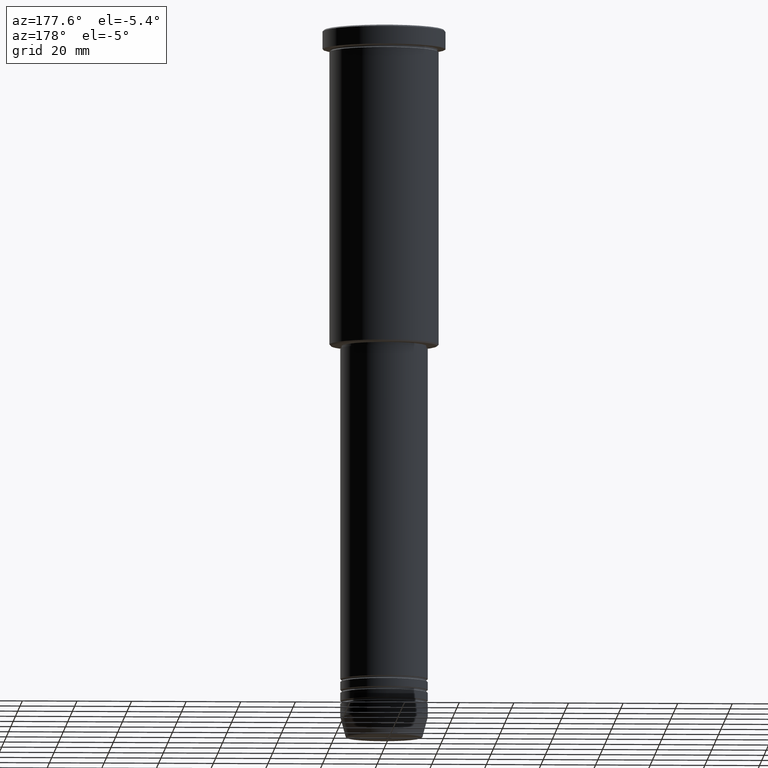
[diagram: clean part render]
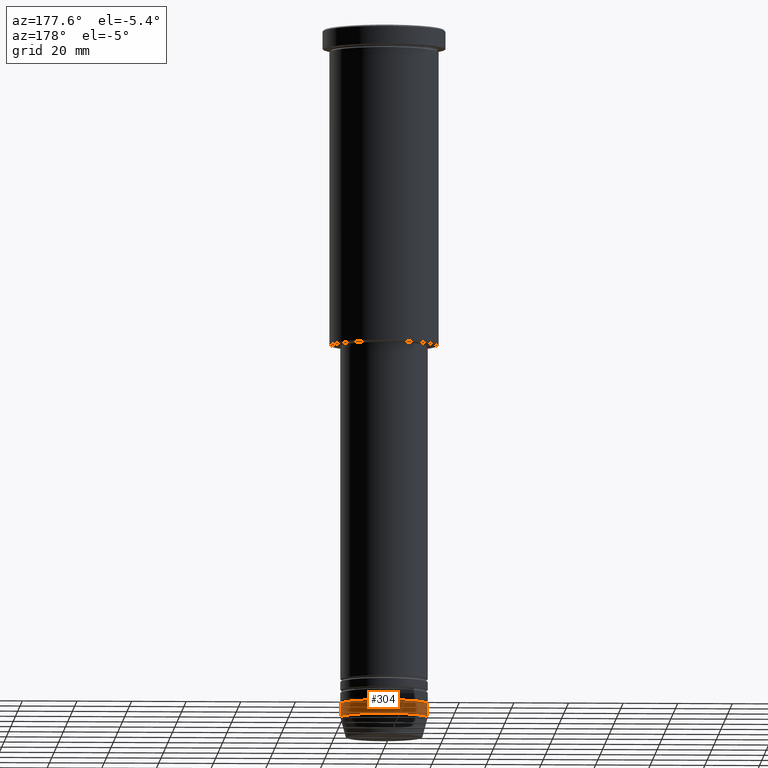
[diagram: same view with one face highlighted and labeled with its STEP entity id]
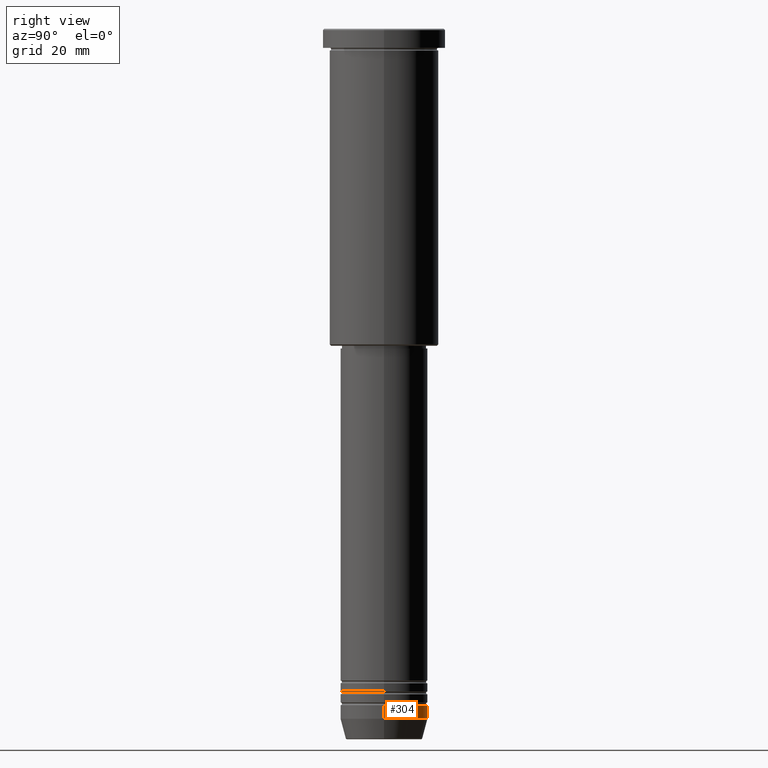
[diagram: same view with one face highlighted and labeled with its STEP entity id]
A machine part, auxiliary view. The second image highlights one B-rep face of the part: STEP entity #304.
A second angle (right view) of the same face is appended — the face is thin or edge-on in the first view.
In plain terms, the highlighted cylindrical surface (partial cylindrical patch) has radius 16 mm, axis along (-0, -0, 1).
Its self-contained STEP definition (entity closure, byte-faithful):
#75 = EDGE_CURVE ( 'NONE', #915, #317, #624, .T. ) ;
#153 = CARTESIAN_POINT ( 'NONE',  ( 16.00000000000000000, 0.000000000000000000, 0.000000000000000000 ) ) ;
#161 = EDGE_CURVE ( 'NONE', #1127, #915, #499, .T. ) ;
#233 = DIRECTION ( 'NONE',  ( -0.000000000000000000, -0.000000000000000000, 1.000000000000000000 ) ) ;
#237 = DIRECTION ( 'NONE',  ( -0.000000000000000000, -0.000000000000000000, 1.000000000000000000 ) ) ;
#238 = VERTEX_POINT ( 'NONE', #448 ) ;
#242 = LINE ( 'NONE', #689, #909 ) ;
#304 = ADVANCED_FACE ( 'NONE', ( #1130 ), #417, .T. ) ;
#317 = VERTEX_POINT ( 'NONE', #936 ) ;
#337 = CARTESIAN_POINT ( 'NONE',  ( 0.000000000000000000, 0.000000000000000000, -252.5000000000000000 ) ) ;
#359 = EDGE_LOOP ( 'NONE', ( #517, #989, #555, #437 ) ) ;
#360 = AXIS2_PLACEMENT_3D ( 'NONE', #1141, #237, #863 ) ;
#417 = CYLINDRICAL_SURFACE ( 'NONE', #862, 16.00000000000000000 ) ;
#436 = DIRECTION ( 'NONE',  ( 1.000000000000000000, 0.000000000000000000, 0.000000000000000000 ) ) ;
#437 = ORIENTED_EDGE ( 'NONE', *, *, #161, .F. ) ;
#448 = CARTESIAN_POINT ( 'NONE',  ( -16.00000000000000000, 1.959434878635765131E-15, -252.5000000000000000 ) ) ;
#454 = EDGE_CURVE ( 'NONE', #1127, #238, #511, .T. ) ;
#495 = CARTESIAN_POINT ( 'NONE',  ( 0.000000000000000000, 0.000000000000000000, 0.000000000000000000 ) ) ;
#499 = LINE ( 'NONE', #153, #826 ) ;
#511 = CIRCLE ( 'NONE', #926, 16.00000000000000000 ) ;
#516 = DIRECTION ( 'NONE',  ( -0.000000000000000000, -0.000000000000000000, 1.000000000000000000 ) ) ;
#517 = ORIENTED_EDGE ( 'NONE', *, *, #454, .T. ) ;
#555 = ORIENTED_EDGE ( 'NONE', *, *, #75, .F. ) ;
#566 = DIRECTION ( 'NONE',  ( -0.000000000000000000, -0.000000000000000000, 1.000000000000000000 ) ) ;
#616 = CARTESIAN_POINT ( 'NONE',  ( 16.00000000000000000, 0.000000000000000000, -252.5000000000000000 ) ) ;
#624 = CIRCLE ( 'NONE', #360, 16.00000000000000000 ) ;
#689 = CARTESIAN_POINT ( 'NONE',  ( -16.00000000000000000, 1.959434878635765131E-15, 0.000000000000000000 ) ) ;
#800 = EDGE_CURVE ( 'NONE', #238, #317, #242, .T. ) ;
#826 = VECTOR ( 'NONE', #959, 1000.000000000000000 ) ;
#833 = DIRECTION ( 'NONE',  ( 1.000000000000000000, 0.000000000000000000, 0.000000000000000000 ) ) ;
#847 = CARTESIAN_POINT ( 'NONE',  ( 16.00000000000000000, 0.000000000000000000, -247.5000000000000000 ) ) ;
#862 = AXIS2_PLACEMENT_3D ( 'NONE', #495, #566, #833 ) ;
#863 = DIRECTION ( 'NONE',  ( 1.000000000000000000, 0.000000000000000000, 0.000000000000000000 ) ) ;
#909 = VECTOR ( 'NONE', #233, 1000.000000000000000 ) ;
#915 = VERTEX_POINT ( 'NONE', #847 ) ;
#926 = AXIS2_PLACEMENT_3D ( 'NONE', #337, #516, #436 ) ;
#936 = CARTESIAN_POINT ( 'NONE',  ( -16.00000000000000000, 1.959434878635765131E-15, -247.5000000000000000 ) ) ;
#959 = DIRECTION ( 'NONE',  ( -0.000000000000000000, -0.000000000000000000, 1.000000000000000000 ) ) ;
#989 = ORIENTED_EDGE ( 'NONE', *, *, #800, .T. ) ;
#1127 = VERTEX_POINT ( 'NONE', #616 ) ;
#1130 = FACE_OUTER_BOUND ( 'NONE', #359, .T. ) ;
#1141 = CARTESIAN_POINT ( 'NONE',  ( 0.000000000000000000, 0.000000000000000000, -247.5000000000000000 ) ) ;